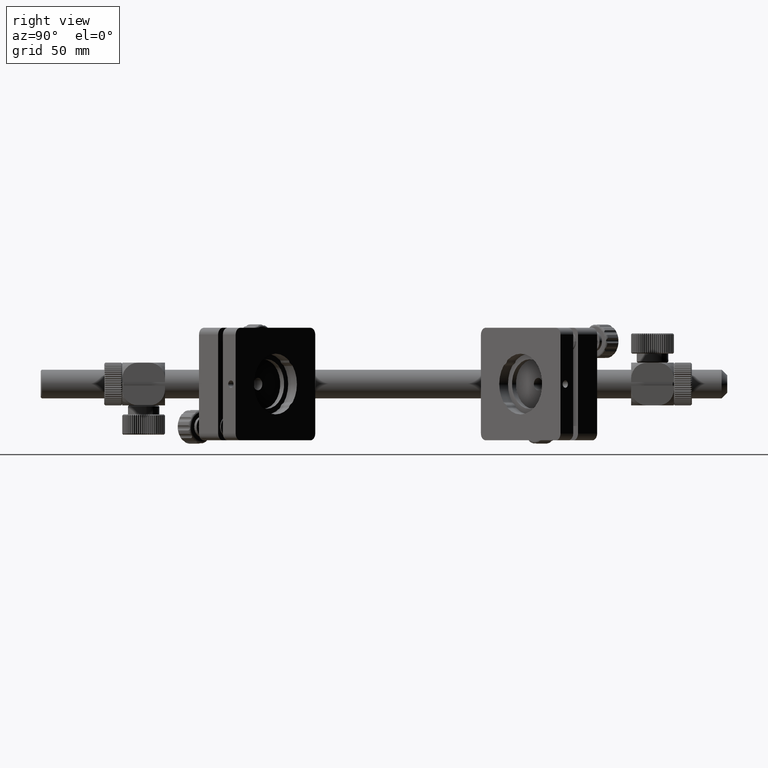
[diagram: clean part render]
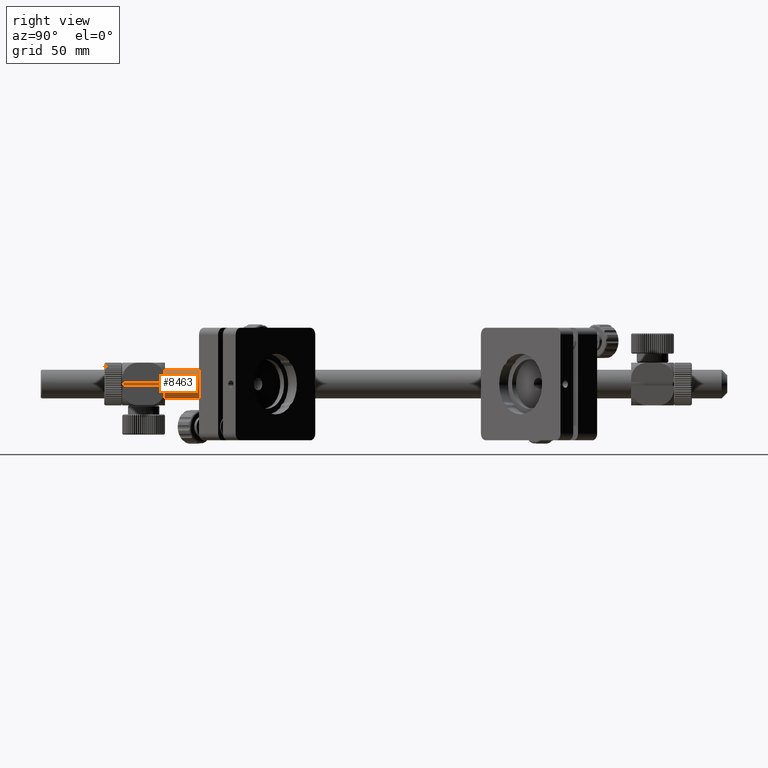
[diagram: same view with one face highlighted and labeled with its STEP entity id]
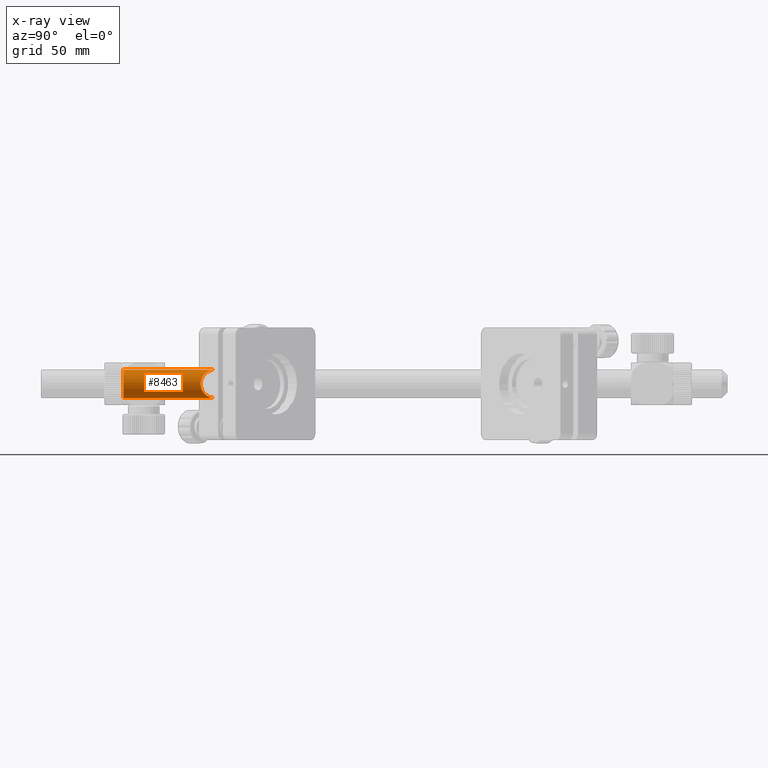
[diagram: x-ray of the same camera — body ghosted, the highlighted face saturated]
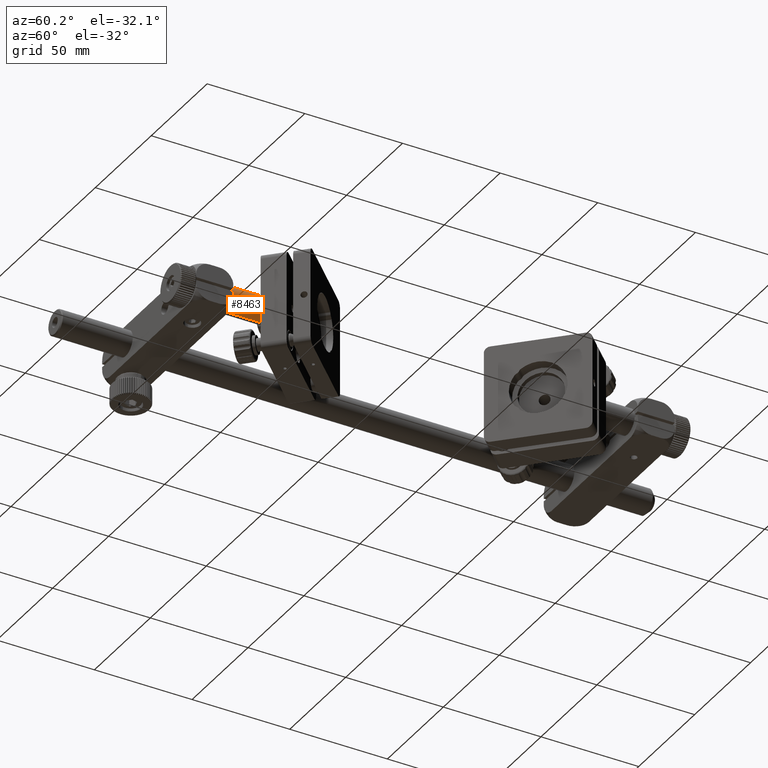
[diagram: same view with one face highlighted and labeled with its STEP entity id]
A machine part, right view. The second image highlights one B-rep face of the part: STEP entity #8463.
The next image is the same camera in x-ray: the body ghosted, the highlighted face saturated — about 0% of this face is hidden behind the body in this view.
A second angle (auxiliary view) of the same face is appended — the face is thin or edge-on in the first view.
In plain terms, the highlighted cylindrical surface (edge-blend (fillet) strip) has radius 6.35 mm, axis along (0, -1, -0).
Its self-contained STEP definition (entity closure, byte-faithful):
#1209 = VERTEX_POINT ( 'NONE', #14149 ) ;
#2074 = CARTESIAN_POINT ( 'NONE',  ( 53.99999999999997868, 51.97653311057185022, 6.350000000000042277 ) ) ;
#2846 = CARTESIAN_POINT ( 'NONE',  ( 53.99999999999997868, 92.62653311057179906, -6.349999999999938360 ) ) ;
#3684 = AXIS2_PLACEMENT_3D ( 'NONE', #24903, #60905, #59446 ) ;
#5988 = ORIENTED_EDGE ( 'NONE', *, *, #15856, .F. ) ;
#7975 = LINE ( 'NONE', #60641, #53502 ) ;
#8463 = ADVANCED_FACE ( 'NONE', ( #35068 ), #17186, .T. ) ;
#8715 = CARTESIAN_POINT ( 'NONE',  ( 53.99999999999997868, 96.47653311057183600, 6.350000000000052935 ) ) ;
#11732 = CARTESIAN_POINT ( 'NONE',  ( 66.69999999999988916, 79.92653311057172516, 6.349999999999996092 ) ) ;
#12031 = CARTESIAN_POINT ( 'NONE',  ( 53.99999999999997868, 92.62653311057178485, 6.350000000000051159 ) ) ;
#12104 = DIRECTION ( 'NONE',  ( 1.143950844249055893E-17, -1.000000000000000000, -3.737730629080077330E-16 ) ) ;
#13076 = ORIENTED_EDGE ( 'NONE', *, *, #57023, .T. ) ;
#14149 = CARTESIAN_POINT ( 'NONE',  ( 53.99999999999997868, 92.62653311057178485, 6.350000000000051159 ) ) ;
#15199 = VERTEX_POINT ( 'NONE', #2074 ) ;
#15856 = EDGE_CURVE ( 'NONE', #50731, #26430, #7975, .T. ) ;
#15871 = DIRECTION ( 'NONE',  ( -1.143950844249055739E-17, 1.000000000000000000, 3.737730629080076837E-16 ) ) ;
#17186 = CYLINDRICAL_SURFACE ( 'NONE', #3684, 6.349999999999994316 ) ;
#20663 = CARTESIAN_POINT ( 'NONE',  ( 53.99999999999995737, 51.97653311057185022, 4.185270840149634719E-14 ) ) ;
#22755 =( BOUNDED_CURVE ( )  B_SPLINE_CURVE ( 3, ( #2846, #40684, #11732, #12031 ),
 .UNSPECIFIED., .F., .T. ) 
 B_SPLINE_CURVE_WITH_KNOTS ( ( 4, 4 ),
 ( 4.712388980384692339, 7.853981633974479237 ),
 .UNSPECIFIED. ) 
 CURVE ( )  GEOMETRIC_REPRESENTATION_ITEM ( )  RATIONAL_B_SPLINE_CURVE ( ( 1.000000000000000000, 0.3333333333333354798, 0.3333333333333354798, 1.000000000000000000 ) ) 
 REPRESENTATION_ITEM ( '' )  );
#23318 = LINE ( 'NONE', #8715, #57307 ) ;
#24903 = CARTESIAN_POINT ( 'NONE',  ( 53.99999999999997868, 96.47653311057183600, 5.848560970090271270E-14 ) ) ;
#26430 = VERTEX_POINT ( 'NONE', #45250 ) ;
#26879 = AXIS2_PLACEMENT_3D ( 'NONE', #20663, #15871, #40067 ) ;
#33987 = ORIENTED_EDGE ( 'NONE', *, *, #58144, .T. ) ;
#35068 = FACE_OUTER_BOUND ( 'NONE', #55501, .T. ) ;
#37703 = CARTESIAN_POINT ( 'NONE',  ( 53.99999999999997868, 92.62653311057179906, -6.349999999999938360 ) ) ;
#38071 = ORIENTED_EDGE ( 'NONE', *, *, #42937, .T. ) ;
#40067 = DIRECTION ( 'NONE',  ( 0.000000000000000000, 0.000000000000000000, -1.000000000000000000 ) ) ;
#40138 = CIRCLE ( 'NONE', #26879, 6.349999999999994316 ) ;
#40684 = CARTESIAN_POINT ( 'NONE',  ( 66.69999999999988916, 79.92653311057175358, -6.349999999999910827 ) ) ;
#42937 = EDGE_CURVE ( 'NONE', #1209, #15199, #23318, .T. ) ;
#45250 = CARTESIAN_POINT ( 'NONE',  ( 53.99999999999997868, 51.97653311057185022, -6.349999999999957900 ) ) ;
#50731 = VERTEX_POINT ( 'NONE', #37703 ) ;
#53502 = VECTOR ( 'NONE', #12104, 1000.000000000000000 ) ;
#55501 = EDGE_LOOP ( 'NONE', ( #5988, #33987, #38071, #13076 ) ) ;
#56923 = DIRECTION ( 'NONE',  ( 1.143950844249055893E-17, -1.000000000000000000, -3.737730629080077330E-16 ) ) ;
#57023 = EDGE_CURVE ( 'NONE', #15199, #26430, #40138, .T. ) ;
#57307 = VECTOR ( 'NONE', #56923, 1000.000000000000000 ) ;
#58144 = EDGE_CURVE ( 'NONE', #50731, #1209, #22755, .T. ) ;
#59446 = DIRECTION ( 'NONE',  ( 0.000000000000000000, 0.000000000000000000, 1.000000000000000000 ) ) ;
#60641 = CARTESIAN_POINT ( 'NONE',  ( 53.99999999999997868, 96.47653311057183600, -6.349999999999936584 ) ) ;
#60905 = DIRECTION ( 'NONE',  ( 1.143950844249055893E-17, -1.000000000000000000, -3.737730629080077330E-16 ) ) ;